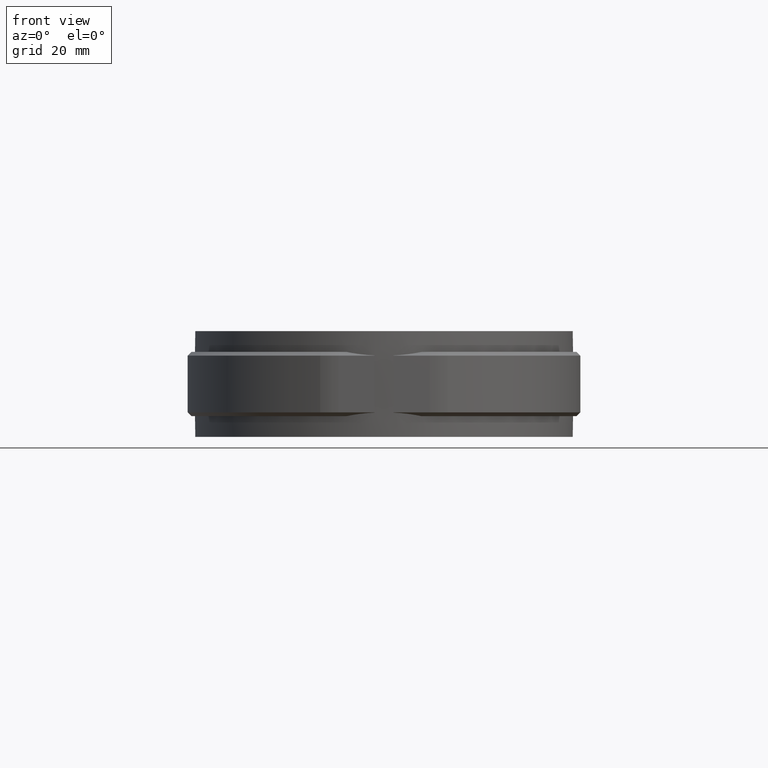
[diagram: clean part render]
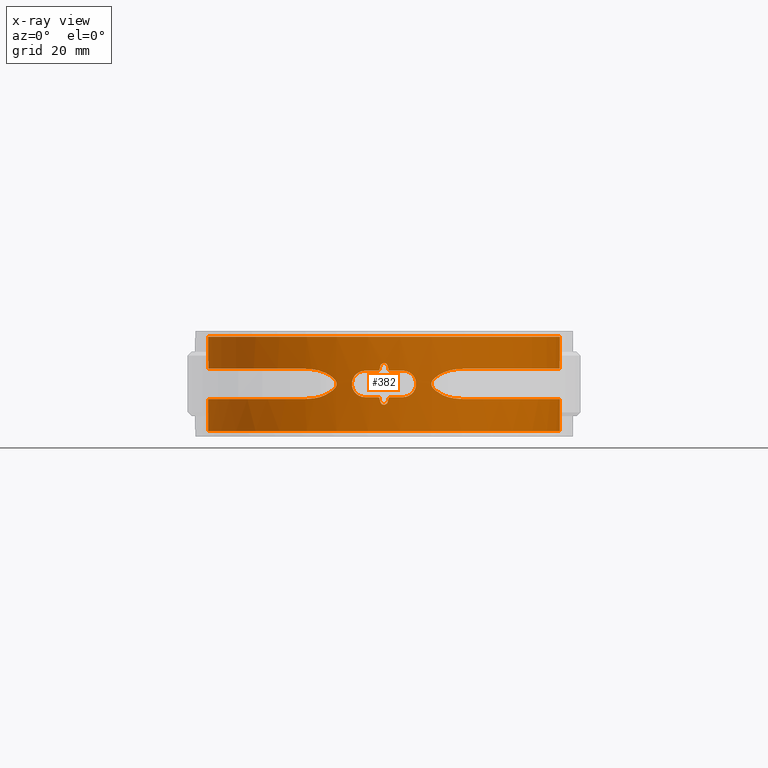
[diagram: x-ray — body ghosted, one internal face saturated and labeled with its STEP entity id]
A machine part, front view, then the same camera in x-ray: the body is ghosted and one INTERNAL B-rep face — a face not visible from any outside direction — is saturated and labeled: STEP entity #382.
In plain terms, the highlighted cylindrical surface (partial cylindrical patch) has radius 46.55 mm, axis along (0, 0, 1).
Its self-contained STEP definition (entity closure, byte-faithful):
#382 = ADVANCED_FACE( '', ( #735, #736 ), #737, .F. );
#735 = FACE_OUTER_BOUND( '', #1602, .T. );
#736 = FACE_BOUND( '', #1603, .T. );
#737 = CYLINDRICAL_SURFACE( '', #1604, 46.5500000000000 );
#1602 = EDGE_LOOP( '', ( #3155, #3156, #3157, #3158, #3159, #3160, #3161, #3162, #3163, #3164, #3165, #3166, #3167, #3168, #3169, #3170 ) );
#1603 = EDGE_LOOP( '', ( #3171, #3172, #3173, #3174, #3175, #3176, #3177, #3178, #3179, #3180, #3181, #3182, #3183, #3184, #3185, #3186 ) );
#1604 = AXIS2_PLACEMENT_3D( '', #3187, #3188, #3189 );
#3155 = ORIENTED_EDGE( '', *, *, #6279, .F. );
#3156 = ORIENTED_EDGE( '', *, *, #6275, .F. );
#3157 = ORIENTED_EDGE( '', *, *, #6284, .T. );
#3158 = ORIENTED_EDGE( '', *, *, #6285, .T. );
#3159 = ORIENTED_EDGE( '', *, *, #6286, .T. );
#3160 = ORIENTED_EDGE( '', *, *, #6287, .T. );
#3161 = ORIENTED_EDGE( '', *, *, #6288, .T. );
#3162 = ORIENTED_EDGE( '', *, *, #6289, .T. );
#3163 = ORIENTED_EDGE( '', *, *, #6290, .T. );
#3164 = ORIENTED_EDGE( '', *, *, #6291, .T. );
#3165 = ORIENTED_EDGE( '', *, *, #6207, .F. );
#3166 = ORIENTED_EDGE( '', *, *, #6277, .F. );
#3167 = ORIENTED_EDGE( '', *, *, #6280, .F. );
#3168 = ORIENTED_EDGE( '', *, *, #6252, .F. );
#3169 = ORIENTED_EDGE( '', *, *, #6292, .F. );
#3170 = ORIENTED_EDGE( '', *, *, #6250, .F. );
#3171 = ORIENTED_EDGE( '', *, *, #6293, .F. );
#3172 = ORIENTED_EDGE( '', *, *, #6256, .F. );
#3173 = ORIENTED_EDGE( '', *, *, #6294, .F. );
#3174 = ORIENTED_EDGE( '', *, *, #6295, .F. );
#3175 = ORIENTED_EDGE( '', *, *, #6266, .F. );
#3176 = ORIENTED_EDGE( '', *, *, #6296, .F. );
#3177 = ORIENTED_EDGE( '', *, *, #6297, .F. );
#3178 = ORIENTED_EDGE( '', *, *, #6298, .F. );
#3179 = ORIENTED_EDGE( '', *, *, #6299, .F. );
#3180 = ORIENTED_EDGE( '', *, *, #6264, .F. );
#3181 = ORIENTED_EDGE( '', *, *, #6259, .F. );
#3182 = ORIENTED_EDGE( '', *, *, #6262, .F. );
#3183 = ORIENTED_EDGE( '', *, *, #6300, .F. );
#3184 = ORIENTED_EDGE( '', *, *, #6301, .F. );
#3185 = ORIENTED_EDGE( '', *, *, #6302, .F. );
#3186 = ORIENTED_EDGE( '', *, *, #6303, .F. );
#3187 = CARTESIAN_POINT( '', ( 0.000000000000000, 0.000000000000000, -12.5000000000000 ) );
#3188 = DIRECTION( '', ( 0.000000000000000, 0.000000000000000, 1.00000000000000 ) );
#3189 = DIRECTION( '', ( -1.00000000000000, 6.16283340149655E-017, 0.000000000000000 ) );
#6207 = EDGE_CURVE( '', #7129, #7131, #7132, .T. );
#6250 = EDGE_CURVE( '', #7209, #7212, #7213, .T. );
#6252 = EDGE_CURVE( '', #7214, #7210, #7216, .T. );
#6256 = EDGE_CURVE( '', #7222, #7223, #7224, .T. );
#6259 = EDGE_CURVE( '', #7227, #7228, #7229, .F. );
#6262 = EDGE_CURVE( '', #7232, #7227, #7233, .T. );
#6264 = EDGE_CURVE( '', #7228, #7235, #7236, .T. );
#6266 = EDGE_CURVE( '', #7238, #7239, #7240, .T. );
#6275 = EDGE_CURVE( '', #7252, #7253, #7254, .T. );
#6277 = EDGE_CURVE( '', #7255, #7129, #7257, .T. );
#6279 = EDGE_CURVE( '', #7253, #7209, #7259, .T. );
#6280 = EDGE_CURVE( '', #7210, #7255, #7260, .T. );
#6284 = EDGE_CURVE( '', #7252, #7264, #7265, .T. );
#6285 = EDGE_CURVE( '', #7264, #7266, #7267, .T. );
#6286 = EDGE_CURVE( '', #7266, #7268, #7269, .T. );
#6287 = EDGE_CURVE( '', #7268, #7270, #7271, .T. );
#6288 = EDGE_CURVE( '', #7270, #7272, #7273, .T. );
#6289 = EDGE_CURVE( '', #7272, #7274, #7275, .T. );
#6290 = EDGE_CURVE( '', #7274, #7276, #7277, .T. );
#6291 = EDGE_CURVE( '', #7276, #7131, #7278, .T. );
#6292 = EDGE_CURVE( '', #7212, #7214, #7279, .T. );
#6293 = EDGE_CURVE( '', #7223, #7280, #7281, .T. );
#6294 = EDGE_CURVE( '', #7282, #7222, #7283, .F. );
#6295 = EDGE_CURVE( '', #7239, #7282, #7284, .T. );
#6296 = EDGE_CURVE( '', #7285, #7238, #7286, .T. );
#6297 = EDGE_CURVE( '', #7287, #7285, #7288, .F. );
#6298 = EDGE_CURVE( '', #7289, #7287, #7290, .T. );
#6299 = EDGE_CURVE( '', #7235, #7289, #7291, .T. );
#6300 = EDGE_CURVE( '', #7292, #7232, #7293, .T. );
#6301 = EDGE_CURVE( '', #7294, #7292, #7295, .T. );
#6302 = EDGE_CURVE( '', #7296, #7294, #7297, .F. );
#6303 = EDGE_CURVE( '', #7280, #7296, #7298, .T. );
#7129 = VERTEX_POINT( '', #8654 );
#7131 = VERTEX_POINT( '', #8656 );
#7132 = CIRCLE( '', #8657, 46.5500000000000 );
#7209 = VERTEX_POINT( '', #9162 );
#7210 = VERTEX_POINT( '', #9163 );
#7212 = VERTEX_POINT( '', #9178 );
#7213 = B_SPLINE_CURVE_WITH_KNOTS( '', 3, ( #9179, #9180, #9181, #9182, #9183, #9184, #9185, #9186, #9187, #9188 ), .UNSPECIFIED., .F., .F., ( 4, 2, 2, 2, 4 ), ( 9.85133562538035E-018, 0.00149618516867782, 0.00299237033735562, 0.00448855550603343, 0.00598474067471123 ), .UNSPECIFIED. );
#7214 = VERTEX_POINT( '', #9189 );
#7216 = B_SPLINE_CURVE_WITH_KNOTS( '', 3, ( #9200, #9201, #9202, #9203, #9204, #9205, #9206, #9207, #9208, #9209 ), .UNSPECIFIED., .F., .F., ( 4, 2, 2, 2, 4 ), ( 1.67709388211489E-015, 0.00149513585611032, 0.00299027171221895, 0.00448540756832759, 0.00598054342443623 ), .UNSPECIFIED. );
#7222 = VERTEX_POINT( '', #9231 );
#7223 = VERTEX_POINT( '', #9232 );
#7224 = ELLIPSE( '', #9233, 212.061327465736, 46.5500000000000 );
#7227 = VERTEX_POINT( '', #9238 );
#7228 = VERTEX_POINT( '', #9239 );
#7229 = B_SPLINE_CURVE_WITH_KNOTS( '', 3, ( #9240, #9241, #9242, #9243, #9244, #9245 ), .UNSPECIFIED., .F., .F., ( 4, 2, 4 ), ( 5.44594381272442E-011, 0.000335865168693846, 0.000671730282928255 ), .UNSPECIFIED. );
#7232 = VERTEX_POINT( '', #9250 );
#7233 = CIRCLE( '', #9251, 46.5500000000000 );
#7235 = VERTEX_POINT( '', #9254 );
#7236 = ELLIPSE( '', #9255, 212.061327465781, 46.5500000000000 );
#7238 = VERTEX_POINT( '', #9258 );
#7239 = VERTEX_POINT( '', #9259 );
#7240 = B_SPLINE_CURVE_WITH_KNOTS( '', 3, ( #9260, #9261, #9262, #9263, #9264, #9265, #9266, #9267, #9268, #9269, #9270, #9271, #9272, #9273, #9274, #9275, #9276, #9277, #9278, #9279, #9280, #9281, #9282, #9283, #9284, #9285, #9286, #9287, #9288, #9289, #9290, #9291, #9292, #9293 ), .UNSPECIFIED., .F., .F., ( 4, 2, 2, 2, 2, 2, 2, 2, 2, 2, 2, 2, 2, 2, 2, 2, 4 ), ( 1.78811203067275E-018, 0.000687134771177365, 0.00137426954235473, 0.00206140431353209, 0.00274853908470945, 0.00343567385588682, 0.00412280862706418, 0.00480994339824155, 0.00549707816941891, 0.00618421294059628, 0.00687134771177364, 0.00755848248295100, 0.00824561725412837, 0.00893275202530574, 0.00961988679648310, 0.0103070215676605, 0.0109941563388378 ), .UNSPECIFIED. );
#7252 = VERTEX_POINT( '', #9317 );
#7253 = VERTEX_POINT( '', #9318 );
#7254 = LINE( '', #9319, #9320 );
#7255 = VERTEX_POINT( '', #9321 );
#7257 = LINE( '', #9354, #9355 );
#7259 = B_SPLINE_CURVE_WITH_KNOTS( '', 3, ( #9357, #9358, #9359, #9360, #9361, #9362, #9363, #9364, #9365, #9366, #9367, #9368, #9369, #9370, #9371, #9372, #9373, #9374, #9375, #9376, #9377, #9378, #9379, #9380, #9381, #9382, #9383, #9384, #9385, #9386, #9387, #9388, #9389, #9390, #9391, #9392, #9393, #9394, #9395, #9396, #9397, #9398, #9399, #9400, #9401, #9402, #9403, #9404, #9405, #9406, #9407, #9408, #9409, #9410, #9411, #9412 ), .UNSPECIFIED., .F., .F., ( 4, 2, 2, 2, 2, 2, 2, 2, 2, 2, 2, 2, 2, 2, 2, 2, 2, 2, 2, 2, 2, 2, 2, 2, 2, 2, 2, 4 ), ( 1.62962475354841E-017, 0.00739229002055268, 0.00924036252569084, 0.0110884350308290, 0.0147845800411054, 0.0221768700616581, 0.0258730150719344, 0.0295691600822108, 0.0369614501027635, 0.0406575951130398, 0.0425056676181780, 0.0443537401233161, 0.0517460301438688, 0.0554421751541451, 0.0591383201644215, 0.0665306101849741, 0.0702267551952505, 0.0720748277003886, 0.0739229002055268, 0.0813151902260795, 0.0887074802466321, 0.0924036252569084, 0.0960997702671848, 0.103492060287737, 0.105340132792876, 0.107188205298014, 0.110884350308290, 0.118276640328843 ), .UNSPECIFIED. );
#7260 = B_SPLINE_CURVE_WITH_KNOTS( '', 3, ( #9413, #9414, #9415, #9416, #9417, #9418, #9419, #9420, #9421, #9422, #9423, #9424, #9425, #9426, #9427, #9428, #9429, #9430, #9431, #9432, #9433, #9434, #9435, #9436, #9437, #9438, #9439, #9440, #9441, #9442, #9443, #9444, #9445, #9446, #9447, #9448, #9449, #9450, #9451, #9452, #9453, #9454, #9455, #9456, #9457, #9458, #9459, #9460, #9461, #9462, #9463, #9464, #9465, #9466, #9467, #9468 ), .UNSPECIFIED., .F., .F., ( 4, 2, 2, 2, 2, 2, 2, 2, 2, 2, 2, 2, 2, 2, 2, 2, 2, 2, 2, 2, 2, 2, 2, 2, 2, 2, 2, 4 ), ( 6.93889390390723E-018, 0.00739224949701873, 0.00924031187127342, 0.0110883742455281, 0.0147844989940375, 0.0221767484910562, 0.0258728732395656, 0.0295689979880749, 0.0369612474850937, 0.0406573722336031, 0.0425054346078577, 0.0443534969821124, 0.0517457464791311, 0.0554418712276405, 0.0591379959761499, 0.0665302454731686, 0.0702263702216780, 0.0720744325959326, 0.0739224949701873, 0.0813147444672061, 0.0887069939642248, 0.0924031187127342, 0.0960992434612436, 0.103491492958262, 0.105339555332517, 0.107187617706772, 0.110883742455281, 0.118275991952300 ), .UNSPECIFIED. );
#7264 = VERTEX_POINT( '', #9497 );
#7265 = CIRCLE( '', #9498, 46.5500000000000 );
#7266 = VERTEX_POINT( '', #9499 );
#7267 = LINE( '', #9500, #9501 );
#7268 = VERTEX_POINT( '', #9502 );
#7269 = B_SPLINE_CURVE_WITH_KNOTS( '', 3, ( #9503, #9504, #9505, #9506, #9507, #9508, #9509, #9510, #9511, #9512, #9513, #9514, #9515, #9516, #9517, #9518, #9519, #9520, #9521, #9522, #9523, #9524, #9525, #9526, #9527, #9528, #9529, #9530, #9531, #9532, #9533, #9534, #9535, #9536, #9537, #9538, #9539, #9540, #9541, #9542, #9543, #9544, #9545, #9546, #9547, #9548, #9549, #9550, #9551, #9552, #9553, #9554, #9555, #9556, #9557, #9558 ), .UNSPECIFIED., .F., .F., ( 4, 2, 2, 2, 2, 2, 2, 2, 2, 2, 2, 2, 2, 2, 2, 2, 2, 2, 2, 2, 2, 2, 2, 2, 2, 2, 2, 4 ), ( 1.28793726409401E-016, 0.00739223670855284, 0.00924029588569103, 0.0110883550628292, 0.0147844734171056, 0.0221767101256583, 0.0258728284799347, 0.0295689468342111, 0.0369611835427638, 0.0406573018970402, 0.0425053610741783, 0.0443534202513165, 0.0517456569598692, 0.0554417753141456, 0.0591378936684219, 0.0665301303769746, 0.0702262487312510, 0.0720743079083891, 0.0739223670855273, 0.0813146037940800, 0.0887068405026327, 0.0924029588569091, 0.0960990772111854, 0.103491313919738, 0.105339373096876, 0.107187432274014, 0.110883550628291, 0.118275787336843 ), .UNSPECIFIED. );
#7270 = VERTEX_POINT( '', #9559 );
#7271 = B_SPLINE_CURVE_WITH_KNOTS( '', 3, ( #9560, #9561, #9562, #9563, #9564, #9565, #9566, #9567, #9568, #9569 ), .UNSPECIFIED., .F., .F., ( 4, 2, 2, 2, 4 ), ( 0.000000000000000, 0.00149654317440374, 0.00299308634880748, 0.00448962952321122, 0.00598617269761496 ), .UNSPECIFIED. );
#7272 = VERTEX_POINT( '', #9570 );
#7273 = B_SPLINE_CURVE_WITH_KNOTS( '', 3, ( #9571, #9572, #9573, #9574, #9575, #9576, #9577, #9578, #9579, #9580, #9581, #9582, #9583, #9584, #9585, #9586, #9587, #9588, #9589, #9590, #9591, #9592, #9593, #9594, #9595, #9596, #9597, #9598, #9599, #9600 ), .UNSPECIFIED., .F., .F., ( 4, 2, 2, 2, 2, 2, 2, 2, 2, 2, 2, 2, 2, 2, 4 ), ( 0.000000000000000, 0.00112050528646302, 0.00224101057292605, 0.00280126321615756, 0.00336151585938907, 0.00392176850262059, 0.00420189482423634, 0.00448202114585210, 0.00476214746746785, 0.00504227378908361, 0.00560252643231512, 0.00616277907554664, 0.00672303171877815, 0.00784353700524118, 0.00896404229170420 ), .UNSPECIFIED. );
#7274 = VERTEX_POINT( '', #9601 );
#7275 = B_SPLINE_CURVE_WITH_KNOTS( '', 3, ( #9602, #9603, #9604, #9605, #9606, #9607, #9608, #9609, #9610, #9611 ), .UNSPECIFIED., .F., .F., ( 4, 2, 2, 2, 4 ), ( 4.63840088528274E-016, 0.00149543172274202, 0.00299086344548358, 0.00448629516822514, 0.00598172689096670 ), .UNSPECIFIED. );
#7276 = VERTEX_POINT( '', #9612 );
#7277 = B_SPLINE_CURVE_WITH_KNOTS( '', 3, ( #9613, #9614, #9615, #9616, #9617, #9618, #9619, #9620, #9621, #9622, #9623, #9624, #9625, #9626, #9627, #9628, #9629, #9630, #9631, #9632, #9633, #9634, #9635, #9636, #9637, #9638, #9639, #9640, #9641, #9642, #9643, #9644, #9645, #9646, #9647, #9648, #9649, #9650, #9651, #9652, #9653, #9654, #9655, #9656, #9657, #9658, #9659, #9660, #9661, #9662, #9663, #9664, #9665, #9666, #9667, #9668 ), .UNSPECIFIED., .F., .F., ( 4, 2, 2, 2, 2, 2, 2, 2, 2, 2, 2, 2, 2, 2, 2, 2, 2, 2, 2, 2, 2, 2, 2, 2, 2, 2, 2, 4 ), ( 0.000000000000000, 0.00739223616834929, 0.00924029521043660, 0.0110883542525239, 0.0147844723366985, 0.0221767085050478, 0.0258728265892224, 0.0295689446733970, 0.0369611808417463, 0.0406572989259209, 0.0425053579680082, 0.0443534170100955, 0.0517456531784448, 0.0554417712626194, 0.0591378893467940, 0.0665301255151433, 0.0702262435993179, 0.0720743026414052, 0.0739223616834925, 0.0813145978518418, 0.0887068340201910, 0.0924029521043657, 0.0960990701885403, 0.103491306356890, 0.105339365398977, 0.107187424441064, 0.110883542525239, 0.118275778693588 ), .UNSPECIFIED. );
#7278 = LINE( '', #9669, #9670 );
#7279 = B_SPLINE_CURVE_WITH_KNOTS( '', 3, ( #9671, #9672, #9673, #9674, #9675, #9676, #9677, #9678, #9679, #9680, #9681, #9682, #9683, #9684, #9685, #9686, #9687, #9688, #9689, #9690, #9691, #9692, #9693, #9694, #9695, #9696, #9697, #9698, #9699, #9700 ), .UNSPECIFIED., .F., .F., ( 4, 2, 2, 2, 2, 2, 2, 2, 2, 2, 2, 2, 2, 2, 4 ), ( 0.000000000000000, 0.00112071008026361, 0.00224142016052721, 0.00280177520065902, 0.00336213024079083, 0.00392248528092263, 0.00420266280098854, 0.00448284032105444, 0.00476301784112034, 0.00504319536118624, 0.00560355040131805, 0.00616390544144985, 0.00672426048158166, 0.00784497056184526, 0.00896568064210887 ), .UNSPECIFIED. );
#7280 = VERTEX_POINT( '', #9701 );
#7281 = B_SPLINE_CURVE_WITH_KNOTS( '', 3, ( #9702, #9703, #9704, #9705, #9706, #9707, #9708, #9709, #9710, #9711 ), .UNSPECIFIED., .F., .F., ( 4, 2, 2, 2, 4 ), ( 1.08420217248550E-019, 0.000671567789988732, 0.00134313557997746, 0.00201470336996620, 0.00268627115995493 ), .UNSPECIFIED. );
#7282 = VERTEX_POINT( '', #9712 );
#7283 = B_SPLINE_CURVE_WITH_KNOTS( '', 3, ( #9713, #9714, #9715, #9716, #9717, #9718 ), .UNSPECIFIED., .F., .F., ( 4, 2, 4 ), ( 0.00156373170255371, 0.00189959651827456, 0.00223546133399541 ), .UNSPECIFIED. );
#7284 = CIRCLE( '', #9719, 46.5500000000000 );
#7285 = VERTEX_POINT( '', #9720 );
#7286 = CIRCLE( '', #9721, 46.5500000000000 );
#7287 = VERTEX_POINT( '', #9722 );
#7288 = B_SPLINE_CURVE_WITH_KNOTS( '', 3, ( #9723, #9724, #9725, #9726, #9727, #9728 ), .UNSPECIFIED., .F., .F., ( 4, 2, 4 ), ( 0.000671854842774671, 0.00100772544726368, 0.00134359605175268 ), .UNSPECIFIED. );
#7289 = VERTEX_POINT( '', #9729 );
#7290 = ELLIPSE( '', #9730, 212.061219288400, 46.5500000000000 );
#7291 = B_SPLINE_CURVE_WITH_KNOTS( '', 3, ( #9731, #9732, #9733, #9734, #9735, #9736, #9737, #9738, #9739, #9740 ), .UNSPECIFIED., .F., .F., ( 4, 2, 2, 2, 4 ), ( 0.000000000000000, 0.000671567789988737, 0.00134313557997747, 0.00201470336996621, 0.00268627115995495 ), .UNSPECIFIED. );
#7292 = VERTEX_POINT( '', #9741 );
#7293 = B_SPLINE_CURVE_WITH_KNOTS( '', 3, ( #9742, #9743, #9744, #9745, #9746, #9747, #9748, #9749, #9750, #9751, #9752, #9753, #9754, #9755, #9756, #9757, #9758, #9759, #9760, #9761, #9762, #9763, #9764, #9765, #9766, #9767, #9768, #9769, #9770, #9771, #9772, #9773, #9774, #9775 ), .UNSPECIFIED., .F., .F., ( 4, 2, 2, 2, 2, 2, 2, 2, 2, 2, 2, 2, 2, 2, 2, 2, 4 ), ( 2.63797774002510E-018, 0.000687134771177365, 0.00137426954235473, 0.00206140431353209, 0.00274853908470945, 0.00343567385588681, 0.00412280862706417, 0.00480994339824153, 0.00549707816941890, 0.00618421294059626, 0.00687134771177362, 0.00755848248295098, 0.00824561725412834, 0.00893275202530570, 0.00961988679648306, 0.0103070215676604, 0.0109941563388378 ), .UNSPECIFIED. );
#7294 = VERTEX_POINT( '', #9776 );
#7295 = CIRCLE( '', #9777, 46.5500000000000 );
#7296 = VERTEX_POINT( '', #9778 );
#7297 = B_SPLINE_CURVE_WITH_KNOTS( '', 3, ( #9779, #9780, #9781, #9782, #9783, #9784 ), .UNSPECIFIED., .F., .F., ( 4, 2, 4 ), ( 0.00223559610445870, 0.00257146605996794, 0.00290733601547718 ), .UNSPECIFIED. );
#7298 = ELLIPSE( '', #9785, 212.061219288384, 46.5500000000000 );
#8654 = CARTESIAN_POINT( '', ( 6.57618567103936, 46.0831453138782, 12.5000000000000 ) );
#8656 = CARTESIAN_POINT( '', ( -6.57618567103937, 46.0831453138782, 12.5000000000000 ) );
#8657 = AXIS2_PLACEMENT_3D( '', #12556, #12557, #12558 );
#9162 = CARTESIAN_POINT( '', ( 20.9280947548254, -41.5802740901942, -3.99747537238551 ) );
#9163 = CARTESIAN_POINT( '', ( 20.9286488434310, -41.5799738673640, 3.99749406839688 ) );
#9178 = CARTESIAN_POINT( '', ( 15.5511545031128, -43.8757247842183, -2.93832929959382 ) );
#9179 = CARTESIAN_POINT( '', ( 20.9280857954260, -41.5802564318606, -3.99749011188180 ) );
#9180 = CARTESIAN_POINT( '', ( 20.4817415313085, -41.8049094728791, -3.99532055369710 ) );
#9181 = CARTESIAN_POINT( '', ( 20.0328943868508, -42.0218159202100, -3.97614057692225 ) );
#9182 = CARTESIAN_POINT( '', ( 19.1304587837759, -42.4402570382058, -3.90070293195806 ) );
#9183 = CARTESIAN_POINT( '', ( 18.6759881019695, -42.6421469080496, -3.84433192815013 ) );
#9184 = CARTESIAN_POINT( '', ( 17.7692831279461, -43.0278723809518, -3.68557710978530 ) );
#9185 = CARTESIAN_POINT( '', ( 17.3152959536951, -43.2124288996296, -3.58305895392600 ) );
#9186 = CARTESIAN_POINT( '', ( 16.4193992536743, -43.5607255853025, -3.31517665051931 ) );
#9187 = CARTESIAN_POINT( '', ( 15.9786614068960, -43.7240291676956, -3.15060405984963 ) );
#9188 = CARTESIAN_POINT( '', ( 15.5510240322329, -43.8755985890670, -2.93850217358139 ) );
#9189 = CARTESIAN_POINT( '', ( 15.5512923696120, -43.8757787975003, 2.93825349545470 ) );
#9200 = CARTESIAN_POINT( '', ( 15.5510831780152, -43.8755776257191, 2.93853150886616 ) );
#9201 = CARTESIAN_POINT( '', ( 15.9786500209697, -43.7240325544344, 3.15059609555093 ) );
#9202 = CARTESIAN_POINT( '', ( 16.4197236273792, -43.5606109104388, 3.31532191274399 ) );
#9203 = CARTESIAN_POINT( '', ( 17.3168945626009, -43.2117959543216, 3.58348857965120 ) );
#9204 = CARTESIAN_POINT( '', ( 17.7702569674389, -43.0274754922325, 3.68579561925078 ) );
#9205 = CARTESIAN_POINT( '', ( 18.6777995905038, -42.6413588242736, 3.84460095374496 ) );
#9206 = CARTESIAN_POINT( '', ( 19.1317407056540, -42.4396752733668, 3.90083688747671 ) );
#9207 = CARTESIAN_POINT( '', ( 20.0335626715606, -42.0214933863833, 3.97616958776467 ) );
#9208 = CARTESIAN_POINT( '', ( 20.4822778301414, -41.8046471106016, 3.99533769512153 ) );
#9209 = CARTESIAN_POINT( '', ( 20.9286485138852, -41.5799732008362, 3.99749283793802 ) );
#9231 = CARTESIAN_POINT( '', ( 1.16219512100790, -46.5354897094755, -3.89024390662615 ) );
#9232 = CARTESIAN_POINT( '', ( 0.975609999999995, -46.5397753016482, -4.71951200000000 ) );
#9233 = AXIS2_PLACEMENT_3D( '', #12610, #12611, #12612 );
#9238 = CARTESIAN_POINT( '', ( -1.65000000000002, -46.5207480593337, 3.50000000000000 ) );
#9239 = CARTESIAN_POINT( '', ( -1.16219510888263, -46.5354897097784, 3.89024396052175 ) );
#9240 = CARTESIAN_POINT( '', ( -1.16219509675616, -46.5354897100812, 3.89024401441720 ) );
#9241 = CARTESIAN_POINT( '', ( -1.18712408803501, -46.5348671239301, 3.77944837886100 ) );
#9242 = CARTESIAN_POINT( '', ( -1.24903555896426, -46.5333243774729, 3.68044234708874 ) );
#9243 = CARTESIAN_POINT( '', ( -1.42635955286595, -46.5282265498333, 3.53861672449584 ) );
#9244 = CARTESIAN_POINT( '', ( -1.53651244032701, -46.5247732412423, 3.50000000000001 ) );
#9245 = CARTESIAN_POINT( '', ( -1.65000000000002, -46.5207480593337, 3.50000000000001 ) );
#9250 = CARTESIAN_POINT( '', ( -4.99999999999995, -46.2806925185871, 3.50000000000000 ) );
#9251 = AXIS2_PLACEMENT_3D( '', #12617, #12618, #12619 );
#9254 = CARTESIAN_POINT( '', ( -0.975610000000002, -46.5397753016482, 4.71951200000000 ) );
#9255 = AXIS2_PLACEMENT_3D( '', #12621, #12622, #12623 );
#9258 = CARTESIAN_POINT( '', ( 5.00000000000004, -46.2806925185871, 3.50000000000000 ) );
#9259 = CARTESIAN_POINT( '', ( 5.00000000000004, -46.2806925185871, -3.50000000000000 ) );
#9260 = CARTESIAN_POINT( '', ( 5.00000000000005, -46.2806925185871, 3.50000000000000 ) );
#9261 = CARTESIAN_POINT( '', ( 5.23101424725128, -46.2557345680164, 3.50000000000001 ) );
#9262 = CARTESIAN_POINT( '', ( 5.45798688627985, -46.2294648070248, 3.47735417320556 ) );
#9263 = CARTESIAN_POINT( '', ( 5.90423554468161, -46.1745930120415, 3.38882016543352 ) );
#9264 = CARTESIAN_POINT( '', ( 6.12575625310973, -46.1456732050923, 3.32189913692397 ) );
#9265 = CARTESIAN_POINT( '', ( 6.54860903964376, -46.0875662719305, 3.14708612205727 ) );
#9266 = CARTESIAN_POINT( '', ( 6.74913194916253, -46.0585339927889, 3.04014833053229 ) );
#9267 = CARTESIAN_POINT( '', ( 7.12869562067262, -46.0013155722735, 2.78758307530890 ) );
#9268 = CARTESIAN_POINT( '', ( 7.30868713323898, -45.9729526051980, 2.64044435126905 ) );
#9269 = CARTESIAN_POINT( '', ( 7.63173027795679, -45.9204308757646, 2.31861562045488 ) );
#9270 = CARTESIAN_POINT( '', ( 7.77679320521373, -45.8959793147898, 2.14295842760768 ) );
#9271 = CARTESIAN_POINT( '', ( 8.03324278500658, -45.8517877533408, 1.76133175017698 ) );
#9272 = CARTESIAN_POINT( '', ( 8.14289242043930, -45.8323441894986, 1.55705653946265 ) );
#9273 = CARTESIAN_POINT( '', ( 8.31863855610540, -45.8007720835402, 1.13526911675996 ) );
#9274 = CARTESIAN_POINT( '', ( 8.38623987158776, -45.7883787014959, 0.914916126865256 ) );
#9275 = CARTESIAN_POINT( '', ( 8.47729974651429, -45.7716072724474, 0.460519771584720 ) );
#9276 = CARTESIAN_POINT( '', ( 8.49980279502248, -45.7674103755657, 0.232266715548746 ) );
#9277 = CARTESIAN_POINT( '', ( 8.50019464909963, -45.7673375997242, -0.226284885958611 ) );
#9278 = CARTESIAN_POINT( '', ( 8.47736465282511, -45.7715947026079, -0.459162923809959 ) );
#9279 = CARTESIAN_POINT( '', ( 8.38737811139793, -45.7881696674285, -0.910255485971625 ) );
#9280 = CARTESIAN_POINT( '', ( 8.32081330275416, -45.8003775084188, -1.12917817948343 ) );
#9281 = CARTESIAN_POINT( '', ( 8.14459446912270, -45.8320422288435, -1.55382430716390 ) );
#9282 = CARTESIAN_POINT( '', ( 8.03450063987221, -45.8515640224239, -1.75894670944727 ) );
#9283 = CARTESIAN_POINT( '', ( 7.78038144641326, -45.8953678314364, -2.13812223048664 ) );
#9284 = CARTESIAN_POINT( '', ( 7.63547307573153, -45.9198155370585, -2.31464134562974 ) );
#9285 = CARTESIAN_POINT( '', ( 7.30865900001749, -45.9729639208651, -2.64071515189402 ) );
#9286 = CARTESIAN_POINT( '', ( 7.13210339171438, -46.0007847819863, -2.78493446076323 ) );
#9287 = CARTESIAN_POINT( '', ( 6.75376402296731, -46.0578524344199, -3.03743914761301 ) );
#9288 = CARTESIAN_POINT( '', ( 6.54961913161978, -46.0874221809350, -3.14658187784906 ) );
#9289 = CARTESIAN_POINT( '', ( 6.12700537486969, -46.1455068147413, -3.32146892987199 ) );
#9290 = CARTESIAN_POINT( '', ( 5.90948262079245, -46.1739247487791, -3.38746115223729 ) );
#9291 = CARTESIAN_POINT( '', ( 5.46202983718599, -46.2289902724368, -3.47686354707661 ) );
#9292 = CARTESIAN_POINT( '', ( 5.23101208102020, -46.2557348020482, -3.50000000000002 ) );
#9293 = CARTESIAN_POINT( '', ( 5.00000000000005, -46.2806925185871, -3.50000000000002 ) );
#9317 = CARTESIAN_POINT( '', ( 6.57618567103936, 46.0831453138782, -12.5000000000000 ) );
#9318 = CARTESIAN_POINT( '', ( 6.57618567103936, 46.0831453138782, -3.99547789453363 ) );
#9319 = CARTESIAN_POINT( '', ( 6.57618567103937, 46.0831453138782, -12.5000000000000 ) );
#9320 = VECTOR( '', #12636, 1000.00000000000 );
#9321 = CARTESIAN_POINT( '', ( 6.57618567103937, 46.0831453138782, 3.99547789453562 ) );
#9354 = CARTESIAN_POINT( '', ( 6.57618567103937, 46.0831453138782, -12.5000000000000 ) );
#9355 = VECTOR( '', #12637, 1000.00000000000 );
#9357 = CARTESIAN_POINT( '', ( 6.57618567103935, 46.0831453138782, -3.99547789453362 ) );
#9358 = CARTESIAN_POINT( '', ( 9.03003772982835, 45.7329741908364, -3.99397553030258 ) );
#9359 = CARTESIAN_POINT( '', ( 11.4348552944387, 45.1910810015259, -3.99297813569633 ) );
#9360 = CARTESIAN_POINT( '', ( 14.3804321190164, 44.2773771036188, -3.99377437020493 ) );
#9361 = CARTESIAN_POINT( '', ( 14.9665071864898, 44.0827489206268, -3.99401512142182 ) );
#9362 = CARTESIAN_POINT( '', ( 16.1325253790865, 43.6695169959023, -3.99461225541899 ) );
#9363 = CARTESIAN_POINT( '', ( 16.7131203908933, 43.4506098292082, -3.99496915358545 ) );
#9364 = CARTESIAN_POINT( '', ( 18.4333344591096, 42.7626031906491, -3.99608313252576 ) );
#9365 = CARTESIAN_POINT( '', ( 19.5551601144487, 42.2610678286828, -3.99689804704563 ) );
#9366 = CARTESIAN_POINT( '', ( 22.8475872730146, 40.6311311716889, -3.99805810983151 ) );
#9367 = CARTESIAN_POINT( '', ( 24.9455822609811, 39.3781599085738, -3.99627575868454 ) );
#9368 = CARTESIAN_POINT( '', ( 27.9463944793408, 37.2479032783890, -3.99467990439836 ) );
#9369 = CARTESIAN_POINT( '', ( 28.9223063545644, 36.4957327832769, -3.99431761784417 ) );
#9370 = CARTESIAN_POINT( '', ( 30.8231813295261, 34.9051544758476, -3.99422989105408 ) );
#9371 = CARTESIAN_POINT( '', ( 31.7354752150041, 34.0773632391112, -3.99450521891057 ) );
#9372 = CARTESIAN_POINT( '', ( 34.3614003778450, 31.4994437075213, -3.99594819924263 ) );
#9373 = CARTESIAN_POINT( '', ( 35.9647412744847, 29.6553371972234, -3.99787428891738 ) );
#9374 = CARTESIAN_POINT( '', ( 38.1498926211951, 26.7018347271624, -3.99718864430893 ) );
#9375 = CARTESIAN_POINT( '', ( 38.8414655938469, 25.6859674239221, -3.99649006620694 ) );
#9376 = CARTESIAN_POINT( '', ( 39.8221618497268, 24.1138838350308, -3.99547306455459 ) );
#9377 = CARTESIAN_POINT( '', ( 40.1401327133954, 23.5807950199580, -3.99513576514217 ) );
#9378 = CARTESIAN_POINT( '', ( 40.7517787797670, 22.5072582583309, -3.99455394691284 ) );
#9379 = CARTESIAN_POINT( '', ( 41.0460041716588, 21.9660136787262, -3.99430882958681 ) );
#9380 = CARTESIAN_POINT( '', ( 42.4600369138211, 19.2377548476412, -3.99343648238509 ) );
#9381 = CARTESIAN_POINT( '', ( 43.4096231286179, 16.9850425419156, -3.99416582132228 ) );
#9382 = CARTESIAN_POINT( '', ( 44.5655157511070, 13.5023495517508, -3.99614160469459 ) );
#9383 = CARTESIAN_POINT( '', ( 44.9058577725539, 12.3241009469837, -3.99688866503299 ) );
#9384 = CARTESIAN_POINT( '', ( 45.4947412059521, 9.93217242317759, -3.99763966366277 ) );
#9385 = CARTESIAN_POINT( '', ( 45.7437335646482, 8.71389008118777, -3.99744462322025 ) );
#9386 = CARTESIAN_POINT( '', ( 46.3391793232225, 5.06528605040196, -3.99581688637047 ) );
#9387 = CARTESIAN_POINT( '', ( 46.5400643857135, 2.62680786864512, -3.99405712475784 ) );
#9388 = CARTESIAN_POINT( '', ( 46.5544317616529, -1.03980118334001, -3.99375636268582 ) );
#9389 = CARTESIAN_POINT( '', ( 46.5111675213466, -2.26349318127091, -3.99398644598587 ) );
#9390 = CARTESIAN_POINT( '', ( 46.3730443069867, -4.10130017157381, -3.99470866524851 ) );
#9391 = CARTESIAN_POINT( '', ( 46.3147845077828, -4.71428110848023, -3.99500850260834 ) );
#9392 = CARTESIAN_POINT( '', ( 46.1734565586095, -5.94101168171982, -3.99566023693133 ) );
#9393 = CARTESIAN_POINT( '', ( 46.0901581315642, -6.55604579128114, -3.99601282130691 ) );
#9394 = CARTESIAN_POINT( '', ( 45.6144397950432, -9.60916179195137, -3.99764683583740 ) );
#9395 = CARTESIAN_POINT( '', ( 45.0451610632866, -11.9919571216059, -3.99744696858117 ) );
#9396 = CARTESIAN_POINT( '', ( 43.5420498148035, -16.6422194658356, -3.99501895735093 ) );
#9397 = CARTESIAN_POINT( '', ( 42.6082312522729, -18.9096910148193, -3.99394088849164 ) );
#9398 = CARTESIAN_POINT( '', ( 40.9227521450282, -22.2208163229294, -3.99452105148548 ) );
#9399 = CARTESIAN_POINT( '', ( 40.3192000624928, -23.2974339405571, -3.99502077788716 ) );
#9400 = CARTESIAN_POINT( '', ( 39.0357526673128, -25.3893350757817, -3.99621212338343 ) );
#9401 = CARTESIAN_POINT( '', ( 38.3551097202696, -26.4060804629691, -3.99690279579267 ) );
#9402 = CARTESIAN_POINT( '', ( 36.1979081047124, -29.3698154084411, -3.99798773209493 ) );
#9403 = CARTESIAN_POINT( '', ( 34.6068123247224, -31.2308557898668, -3.99620651992908 ) );
#9404 = CARTESIAN_POINT( '', ( 32.4207933214803, -33.4092145589542, -3.99454787434721 ) );
#9405 = CARTESIAN_POINT( '', ( 31.9727036855616, -33.8383090503504, -3.99425371960120 ) );
#9406 = CARTESIAN_POINT( '', ( 31.0624933599767, -34.6757328201316, -3.99380967001787 ) );
#9407 = CARTESIAN_POINT( '', ( 30.6002463494944, -35.0842766940730, -3.99365939741675 ) );
#9408 = CARTESIAN_POINT( '', ( 29.1923642462897, -36.2798092731482, -3.99346538635805 ) );
#9409 = CARTESIAN_POINT( '', ( 28.2256209814127, -37.0367457687776, -3.99369441448946 ) );
#9410 = CARTESIAN_POINT( '', ( 25.2419658117958, -39.1887806606158, -3.99519946371294 ) );
#9411 = CARTESIAN_POINT( '', ( 23.1421663912669, -40.4658701148500, -3.99755505601985 ) );
#9412 = CARTESIAN_POINT( '', ( 20.9280858522601, -41.5802564032550, -3.99748926461679 ) );
#9413 = CARTESIAN_POINT( '', ( 20.9286485092576, -41.5799732031648, 3.99748928127863 ) );
#9414 = CARTESIAN_POINT( '', ( 23.1427021639720, -40.4655628957376, 3.99755460171490 ) );
#9415 = CARTESIAN_POINT( '', ( 25.2491420301940, -39.1850797612592, 3.99518997024292 ) );
#9416 = CARTESIAN_POINT( '', ( 27.7495371198888, -37.3797557035120, 3.99393606837583 ) );
#9417 = CARTESIAN_POINT( '', ( 28.2429438022478, -37.0083937891882, 3.99375035515541 ) );
#9418 = CARTESIAN_POINT( '', ( 29.2162998249057, -36.2449018485879, 3.99354746444525 ) );
#9419 = CARTESIAN_POINT( '', ( 29.6967703570879, -35.8522762740681, 3.99353067871162 ) );
#9420 = CARTESIAN_POINT( '', ( 31.1077608638874, -34.6516269276070, 3.99373827330743 ) );
#9421 = CARTESIAN_POINT( '', ( 32.0110728908444, -33.8185354045004, 3.99423437378902 ) );
#9422 = CARTESIAN_POINT( '', ( 34.6118065848466, -31.2237704809458, 3.99621565033623 ) );
#9423 = CARTESIAN_POINT( '', ( 36.2006885972105, -29.3671862076848, 3.99799164478475 ) );
#9424 = CARTESIAN_POINT( '', ( 38.3654868057409, -26.3912233010481, 3.99689489949851 ) );
#9425 = CARTESIAN_POINT( '', ( 39.0505775976112, -25.3671183194894, 3.99619745657711 ) );
#9426 = CARTESIAN_POINT( '', ( 40.3449752523017, -23.2534142532487, 3.99499778656041 ) );
#9427 = CARTESIAN_POINT( '', ( 40.9456574816712, -22.1779212544313, 3.99450790541991 ) );
#9428 = CARTESIAN_POINT( '', ( 42.6123914588212, -18.8972173945419, 3.99395021995155 ) );
#9429 = CARTESIAN_POINT( '', ( 43.5439428129550, -16.6381072249469, 3.99502165547745 ) );
#9430 = CARTESIAN_POINT( '', ( 44.6731487372306, -13.1419956183584, 3.99684622922863 ) );
#9431 = CARTESIAN_POINT( '', ( 45.0046596343490, -11.9586355090186, 3.99743379204984 ) );
#9432 = CARTESIAN_POINT( '', ( 45.4328249264067, -10.1559038109253, 3.99751396011716 ) );
#9433 = CARTESIAN_POINT( '', ( 45.5641957357211, -9.54925188967990, 3.99738428778242 ) );
#9434 = CARTESIAN_POINT( '', ( 45.8015638929812, -8.33671935792645, 3.99694642229572 ) );
#9435 = CARTESIAN_POINT( '', ( 45.9078284974137, -7.72990909136234, 3.99664217139720 ) );
#9436 = CARTESIAN_POINT( '', ( 46.3780115483709, -4.69317966393214, 3.99501119941097 ) );
#9437 = CARTESIAN_POINT( '', ( 46.5596468323130, -2.25527598578941, 3.99365374468580 ) );
#9438 = CARTESIAN_POINT( '', ( 46.5445886642898, 1.41417354044989, 3.99395912128888 ) );
#9439 = CARTESIAN_POINT( '', ( 46.4914282992601, 2.63943212320601, 3.99439222773469 ) );
#9440 = CARTESIAN_POINT( '', ( 46.2868023250988, 5.09425536810696, 3.99560500819558 ) );
#9441 = CARTESIAN_POINT( '', ( 46.1342963550435, 6.32832741857555, 3.99638668091584 ) );
#9442 = CARTESIAN_POINT( '', ( 45.5351496485593, 9.97630988141456, 3.99799481441611 ) );
#9443 = CARTESIAN_POINT( '', ( 44.9479412153930, 12.3515271900108, 3.99679393603144 ) );
#9444 = CARTESIAN_POINT( '', ( 43.7923187218789, 15.8312699054238, 3.99482064870946 ) );
#9445 = CARTESIAN_POINT( '', ( 43.3610925133431, 16.9772713251168, 3.99424892724543 ) );
#9446 = CARTESIAN_POINT( '', ( 42.6441270448940, 18.6750722884351, 3.99386108811359 ) );
#9447 = CARTESIAN_POINT( '', ( 42.3934372143872, 19.2374682883576, 3.99380656843466 ) );
#9448 = CARTESIAN_POINT( '', ( 41.8682997108418, 20.3550776053269, 3.99385988897171 ) );
#9449 = CARTESIAN_POINT( '', ( 41.5932239334735, 20.9114354589042, 3.99396833580162 ) );
#9450 = CARTESIAN_POINT( '', ( 40.1687407579654, 23.6534422025884, 3.99486218312340 ) );
#9451 = CARTESIAN_POINT( '', ( 38.8693410937775, 25.7302901201773, 3.99696829598955 ) );
#9452 = CARTESIAN_POINT( '', ( 35.9618031423000, 29.6584258093273, 3.99786979254765 ) );
#9453 = CARTESIAN_POINT( '', ( 34.3536766350620, 31.5097222414680, 3.99593570761246 ) );
#9454 = CARTESIAN_POINT( '', ( 31.7003342459304, 34.1104838314631, 3.99449012362510 ) );
#9455 = CARTESIAN_POINT( '', ( 30.7849723711708, 34.9384284856589, 3.99422564841804 ) );
#9456 = CARTESIAN_POINT( '', ( 28.9014573715319, 36.5118346668964, 3.99432477746027 ) );
#9457 = CARTESIAN_POINT( '', ( 27.9321264165711, 37.2584463564577, 3.99468653680939 ) );
#9458 = CARTESIAN_POINT( '', ( 24.9424654776440, 39.3795373270171, 3.99627934239410 ) );
#9459 = CARTESIAN_POINT( '', ( 22.8409886191059, 40.6360303141968, 3.99806895599919 ) );
#9460 = CARTESIAN_POINT( '', ( 20.0744673598084, 42.0035618908640, 3.99707763521026 ) );
#9461 = CARTESIAN_POINT( '', ( 19.5129430482382, 42.2673631951711, 3.99676718409429 ) );
#9462 = CARTESIAN_POINT( '', ( 18.3832129497761, 42.7708127058568, 3.99606900539464 ) );
#9463 = CARTESIAN_POINT( '', ( 17.8148214333821, 43.0106229027098, 3.99568170872627 ) );
#9464 = CARTESIAN_POINT( '', ( 16.0992079354368, 43.6947844093679, 3.99457347160051 ) );
#9465 = CARTESIAN_POINT( '', ( 14.9415632470522, 44.1039215158084, 3.99392223568485 ) );
#9466 = CARTESIAN_POINT( '', ( 11.4274357486694, 45.1921567704291, 3.99298386797391 ) );
#9467 = CARTESIAN_POINT( '', ( 9.03002501774806, 45.7329760048836, 3.99397553808751 ) );
#9468 = CARTESIAN_POINT( '', ( 6.57618567103936, 46.0831453138782, 3.99547789453563 ) );
#9497 = CARTESIAN_POINT( '', ( -6.57618567103937, 46.0831453138782, -12.5000000000000 ) );
#9498 = AXIS2_PLACEMENT_3D( '', #12641, #12642, #12643 );
#9499 = CARTESIAN_POINT( '', ( -6.57618567103926, 46.0831453138782, -3.99547789453364 ) );
#9500 = CARTESIAN_POINT( '', ( -6.57618567103938, 46.0831453138782, -12.5000000000000 ) );
#9501 = VECTOR( '', #12644, 1000.00000000000 );
#9502 = CARTESIAN_POINT( '', ( -20.9288332613289, -41.5798732256810, -3.99749661566699 ) );
#9503 = CARTESIAN_POINT( '', ( -6.57618567103914, 46.0831453138783, -3.99547789453363 ) );
#9504 = CARTESIAN_POINT( '', ( -9.03002003304399, 45.7329767162140, -3.99397554113739 ) );
#9505 = CARTESIAN_POINT( '', ( -11.4348206036772, 45.1910888002170, -3.99297814499721 ) );
#9506 = CARTESIAN_POINT( '', ( -14.3803770626263, 44.2773949223631, -3.99377435065302 ) );
#9507 = CARTESIAN_POINT( '', ( -14.9664481013345, 44.0827689168288, -3.99401509534582 ) );
#9508 = CARTESIAN_POINT( '', ( -16.1324583271985, 43.6695417020338, -3.99461221689894 ) );
#9509 = CARTESIAN_POINT( '', ( -16.7130495492959, 43.4506370170474, -3.99496910923487 ) );
#9510 = CARTESIAN_POINT( '', ( -18.4332528358973, 42.7626381270567, -3.99608307661809 ) );
#9511 = CARTESIAN_POINT( '', ( -19.5550716442077, 42.2611085153618, -3.99689799063915 ) );
#9512 = CARTESIAN_POINT( '', ( -22.8474792798881, 40.6311908560922, -3.99805812224684 ) );
#9513 = CARTESIAN_POINT( '', ( -24.9454625969837, 39.3782345646715, -3.99627584613871 ) );
#9514 = CARTESIAN_POINT( '', ( -27.9462595387815, 37.2480042175820, -3.99467996425395 ) );
#9515 = CARTESIAN_POINT( '', ( -28.9221654084869, 36.4958442057764, -3.99431765440984 ) );
#9516 = CARTESIAN_POINT( '', ( -30.8230343901589, 34.9052839437135, -3.99422986777910 ) );
#9517 = CARTESIAN_POINT( '', ( -31.7353257502246, 34.0775021311964, -3.99450516063477 ) );
#9518 = CARTESIAN_POINT( '', ( -34.3612448003527, 31.4996121193340, -3.99594806604285 ) );
#9519 = CARTESIAN_POINT( '', ( -35.9645835537646, 29.6555269350433, -3.99787419473371 ) );
#9520 = CARTESIAN_POINT( '', ( -38.1497350963209, 26.7020593602486, -3.99718876556076 ) );
#9521 = CARTESIAN_POINT( '', ( -38.8413087071244, 25.6862041769022, -3.99649022329926 ) );
#9522 = CARTESIAN_POINT( '', ( -39.8220068954648, 24.1141395988424, -3.99547322804543 ) );
#9523 = CARTESIAN_POINT( '', ( -40.1399788862150, 23.5810567679058, -3.99513592255718 ) );
#9524 = CARTESIAN_POINT( '', ( -40.7516282396494, 22.5075307196145, -3.99455407902768 ) );
#9525 = CARTESIAN_POINT( '', ( -41.0458554077127, 21.9662915478704, -3.99430894292687 ) );
#9526 = CARTESIAN_POINT( '', ( -42.4598977246411, 19.2380600239049, -3.99343648202433 ) );
#9527 = CARTESIAN_POINT( '', ( -43.4094937938721, 16.9853704108968, -3.99416565895745 ) );
#9528 = CARTESIAN_POINT( '', ( -44.5654053580909, 13.5027130654524, -3.99614138665051 ) );
#9529 = CARTESIAN_POINT( '', ( -44.9057543916259, 12.3244766117313, -3.99688846106772 ) );
#9530 = CARTESIAN_POINT( '', ( -45.4946534717086, 9.93257301625770, -3.99763962387695 ) );
#9531 = CARTESIAN_POINT( '', ( -45.7436549015953, 8.71430196761105, -3.99744474956493 ) );
#9532 = CARTESIAN_POINT( '', ( -46.3391305190087, 5.06572530819459, -3.99581719712201 ) );
#9533 = CARTESIAN_POINT( '', ( -46.5400375958763, 2.62726543937240, -3.99405732345971 ) );
#9534 = CARTESIAN_POINT( '', ( -46.5544423553116, -1.03931600804802, -3.99375632192271 ) );
#9535 = CARTESIAN_POINT( '', ( -46.5111913074161, -2.26299878179847, -3.99398631488462 ) );
#9536 = CARTESIAN_POINT( '', ( -46.3730891887908, -4.10079189533267, -3.99470843393254 ) );
#9537 = CARTESIAN_POINT( '', ( -46.3148366398895, -4.71376819988321, -3.99500824389772 ) );
#9538 = CARTESIAN_POINT( '', ( -46.1735236710272, -5.94048949354939, -3.99565994572995 ) );
#9539 = CARTESIAN_POINT( '', ( -46.0902329334352, -6.55551958168105, -3.99601252548783 ) );
#9540 = CARTESIAN_POINT( '', ( -45.6145522691866, -9.60862439621132, -3.99764660497066 ) );
#9541 = CARTESIAN_POINT( '', ( -45.0453053967411, -11.9914113216006, -3.99744722252184 ) );
#9542 = CARTESIAN_POINT( '', ( -43.5422632008638, -16.6416585446336, -3.99501928124802 ) );
#9543 = CARTESIAN_POINT( '', ( -42.6084818031013, -18.9091233676817, -3.99394099077238 ) );
#9544 = CARTESIAN_POINT( '', ( -40.9230644576718, -22.2202404896549, -3.99452084975853 ) );
#9545 = CARTESIAN_POINT( '', ( -40.3195284751856, -23.2968651912248, -3.99502048801824 ) );
#9546 = CARTESIAN_POINT( '', ( -39.0361184481440, -25.3887723354611, -3.99621176888319 ) );
#9547 = CARTESIAN_POINT( '', ( -38.3554945901711, -26.4055210310692, -3.99690246511401 ) );
#9548 = CARTESIAN_POINT( '', ( -36.1983518290843, -29.3692670928917, -3.99798778304067 ) );
#9549 = CARTESIAN_POINT( '', ( -34.6072973671023, -31.2303164473315, -3.99620703075792 ) );
#9550 = CARTESIAN_POINT( '', ( -32.4213341938675, -33.4086895712482, -3.99454824906155 ) );
#9551 = CARTESIAN_POINT( '', ( -31.9732558003442, -33.8377873112376, -3.99425404968324 ) );
#9552 = CARTESIAN_POINT( '', ( -31.0630636646618, -34.6752218790300, -3.99380988758732 ) );
#9553 = CARTESIAN_POINT( '', ( -30.6008257206036, -35.0837713063880, -3.99365954850006 ) );
#9554 = CARTESIAN_POINT( '', ( -29.1929707498588, -36.2793210278894, -3.99346532758230 ) );
#9555 = CARTESIAN_POINT( '', ( -28.2262454840221, -37.0362695935456, -3.99369420167754 ) );
#9556 = CARTESIAN_POINT( '', ( -25.2426441959856, -39.1883428089930, -3.99519891720013 ) );
#9557 = CARTESIAN_POINT( '', ( -23.1428805311524, -40.4654605995545, -3.99755445025843 ) );
#9558 = CARTESIAN_POINT( '', ( -20.9288360665733, -41.5798787985066, -3.99748928680321 ) );
#9559 = CARTESIAN_POINT( '', ( -15.5504781356811, -43.8757348887868, -2.93831372385337 ) );
#9560 = CARTESIAN_POINT( '', ( -20.9288360774443, -41.5798787930348, -3.99749374250175 ) );
#9561 = CARTESIAN_POINT( '', ( -20.4823890668100, -41.8045936448827, -3.99534307975500 ) );
#9562 = CARTESIAN_POINT( '', ( -20.0334371965688, -42.0215585657912, -3.97617394019064 ) );
#9563 = CARTESIAN_POINT( '', ( -19.1307880390302, -42.4401100282833, -3.90074245595134 ) );
#9564 = CARTESIAN_POINT( '', ( -18.6762085467192, -42.6420517177541, -3.84436663507120 ) );
#9565 = CARTESIAN_POINT( '', ( -17.7692882006813, -43.0278716324813, -3.68558188771464 ) );
#9566 = CARTESIAN_POINT( '', ( -17.3151909442252, -43.2124722080296, -3.58303804638893 ) );
#9567 = CARTESIAN_POINT( '', ( -16.4190862584395, -43.5608447829313, -3.31507256546679 ) );
#9568 = CARTESIAN_POINT( '', ( -15.9782557032234, -43.7241784613606, -3.15042247407077 ) );
#9569 = CARTESIAN_POINT( '', ( -15.5505226800159, -43.8757762823445, -2.93825349869588 ) );
#9570 = CARTESIAN_POINT( '', ( -15.5502123697707, -43.8758405117103, 2.93816666858285 ) );
#9571 = CARTESIAN_POINT( '', ( -15.5505225442822, -43.8757763304511, -2.93825323302696 ) );
#9572 = CARTESIAN_POINT( '', ( -15.2294183795220, -43.9895825800672, -2.78048606524966 ) );
#9573 = CARTESIAN_POINT( '', ( -14.9135143322046, -44.0975610369623, -2.61126140215523 ) );
#9574 = CARTESIAN_POINT( '', ( -14.2972899763264, -44.3011884544684, -2.24120109894371 ) );
#9575 = CARTESIAN_POINT( '', ( -13.9966317400444, -44.3969212729919, -2.04095356007137 ) );
#9576 = CARTESIAN_POINT( '', ( -13.5670259415860, -44.5293247394006, -1.70024626314589 ) );
#9577 = CARTESIAN_POINT( '', ( -13.4277970828717, -44.5714641941749, -1.57993460828792 ) );
#9578 = CARTESIAN_POINT( '', ( -13.1660126663870, -44.6494934504293, -1.32421981801619 ) );
#9579 = CARTESIAN_POINT( '', ( -13.0427445368207, -44.6855974127127, -1.18854874289530 ) );
#9580 = CARTESIAN_POINT( '', ( -12.8211626242695, -44.7496769837039, -0.892012815123180 ) );
#9581 = CARTESIAN_POINT( '', ( -12.7225441494105, -44.7777267804346, -0.729958531372771 ) );
#9582 = CARTESIAN_POINT( '', ( -12.6160226484776, -44.8078099648636, -0.469357388184661 ) );
#9583 = CARTESIAN_POINT( '', ( -12.5870633629831, -44.8159430226694, -0.378145563131853 ) );
#9584 = CARTESIAN_POINT( '', ( -12.5479224047597, -44.8269177664384, -0.194335726319191 ) );
#9585 = CARTESIAN_POINT( '', ( -12.5374177815325, -44.8298522822735, -0.101351067559069 ) );
#9586 = CARTESIAN_POINT( '', ( -12.5364001303782, -44.8301368729809, 0.0869978492417583 ) );
#9587 = CARTESIAN_POINT( '', ( -12.5462750628174, -44.8273785413305, 0.182835115426580 ) );
#9588 = CARTESIAN_POINT( '', ( -12.5840533470992, -44.8167879950915, 0.367345765381108 ) );
#9589 = CARTESIAN_POINT( '', ( -12.6118176961953, -44.8089934768887, 0.457267228734761 ) );
#9590 = CARTESIAN_POINT( '', ( -12.7175843567453, -44.7791348306857, 0.721111826304561 ) );
#9591 = CARTESIAN_POINT( '', ( -12.8135872686438, -44.7518461044640, 0.880393228334683 ) );
#9592 = CARTESIAN_POINT( '', ( -13.0347406301156, -44.6879322094275, 1.17921875999553 ) );
#9593 = CARTESIAN_POINT( '', ( -13.1597648438175, -44.6513353050536, 1.31759822896189 ) );
#9594 = CARTESIAN_POINT( '', ( -13.4215626825687, -44.5733419257158, 1.57433927858199 ) );
#9595 = CARTESIAN_POINT( '', ( -13.5594962501287, -44.5316161836077, 1.69388691895103 ) );
#9596 = CARTESIAN_POINT( '', ( -13.9874374798269, -44.3998108855608, 2.03440541631103 ) );
#9597 = CARTESIAN_POINT( '', ( -14.2915818428312, -44.3030427350315, 2.23758562064307 ) );
#9598 = CARTESIAN_POINT( '', ( -14.9110587161159, -44.0984039973888, 2.60997186117735 ) );
#9599 = CARTESIAN_POINT( '', ( -15.2282185475229, -43.9900055564495, 2.77988832558111 ) );
#9600 = CARTESIAN_POINT( '', ( -15.5502478945733, -43.8758736712709, 2.93811828668489 ) );
#9601 = CARTESIAN_POINT( '', ( -20.9288332718350, -41.5798732372210, 3.99749749372790 ) );
#9602 = CARTESIAN_POINT( '', ( -15.5502484559896, -43.8758734722969, 2.93811747154721 ) );
#9603 = CARTESIAN_POINT( '', ( -15.9778887369630, -43.7243115296469, 3.15025119033874 ) );
#9604 = CARTESIAN_POINT( '', ( -16.4190280819076, -43.5608740614930, 3.31508330296051 ) );
#9605 = CARTESIAN_POINT( '', ( -17.3163690285806, -43.2120075421374, 3.58336216392033 ) );
#9606 = CARTESIAN_POINT( '', ( -17.7698195160321, -43.0276572673832, 3.68570709964412 ) );
#9607 = CARTESIAN_POINT( '', ( -18.6775436885361, -42.6414720350338, 3.84456813854255 ) );
#9608 = CARTESIAN_POINT( '', ( -19.1315740836850, -42.4397515294748, 3.90082083198921 ) );
#9609 = CARTESIAN_POINT( '', ( -20.0335739715532, -42.0214891541149, 3.97617266823478 ) );
#9610 = CARTESIAN_POINT( '', ( -20.4823775778329, -41.8045994278458, 3.99534302459541 ) );
#9611 = CARTESIAN_POINT( '', ( -20.9288360845670, -41.5798787894497, 3.99749374253805 ) );
#9612 = CARTESIAN_POINT( '', ( -6.57618567103939, 46.0831453138782, 3.99547789453563 ) );
#9613 = CARTESIAN_POINT( '', ( -20.9288360703419, -41.5798787966097, 3.99748928680532 ) );
#9614 = CARTESIAN_POINT( '', ( -23.1428807059718, -40.4654605113093, 3.99755445026244 ) );
#9615 = CARTESIAN_POINT( '', ( -25.2493111896683, -39.1849704794778, 3.99518983408998 ) );
#9616 = CARTESIAN_POINT( '', ( -27.7496941088792, -37.3796391408883, 3.99393600248197 ) );
#9617 = CARTESIAN_POINT( '', ( -28.2430983350340, -37.0082758380561, 3.99375030596887 ) );
#9618 = CARTESIAN_POINT( '', ( -29.2164494014223, -36.2447812580263, 3.99354745024719 ) );
#9619 = CARTESIAN_POINT( '', ( -29.6969174623847, -35.8521544063873, 3.99353068280482 ) );
#9620 = CARTESIAN_POINT( '', ( -31.1079006162200, -34.6515013908472, 3.99373832897674 ) );
#9621 = CARTESIAN_POINT( '', ( -32.0112077212267, -33.8184077015085, 3.99423445935537 ) );
#9622 = CARTESIAN_POINT( '', ( -34.6119265991918, -31.2236371046048, 3.99621577606751 ) );
#9623 = CARTESIAN_POINT( '', ( -36.2007986649626, -29.3670501422593, 3.99799165683348 ) );
#9624 = CARTESIAN_POINT( '', ( -38.3655819249782, -26.3910849164556, 3.99689481739901 ) );
#9625 = CARTESIAN_POINT( '', ( -39.0506675100028, -25.3669798074811, 3.99619736922821 ) );
#9626 = CARTESIAN_POINT( '', ( -40.3450556486288, -23.2532746562497, 3.99499771606480 ) );
#9627 = CARTESIAN_POINT( '', ( -40.9457331795555, -22.1777813823440, 3.99450785721596 ) );
#9628 = CARTESIAN_POINT( '', ( -42.6124532629975, -18.8970774863843, 3.99395024502760 ) );
#9629 = CARTESIAN_POINT( '', ( -43.5439956190261, -16.6379683389626, 3.99502173581428 ) );
#9630 = CARTESIAN_POINT( '', ( -44.6731886013730, -13.1418598917992, 3.99684629613514 ) );
#9631 = CARTESIAN_POINT( '', ( -45.0046952780316, -11.9585011080897, 3.99743383894386 ) );
#9632 = CARTESIAN_POINT( '', ( -45.4328544118295, -10.1557718292936, 3.99751394552442 ) );
#9633 = CARTESIAN_POINT( '', ( -45.5642232287728, -9.54912064369636, 3.99738425280757 ) );
#9634 = CARTESIAN_POINT( '', ( -45.8015875495253, -8.33658931772876, 3.99694636291316 ) );
#9635 = CARTESIAN_POINT( '', ( -45.9078502687615, -7.72977971163397, 3.99664210515548 ) );
#9636 = CARTESIAN_POINT( '', ( -46.3780240674329, -4.69305387047785, 3.99501111886486 ) );
#9637 = CARTESIAN_POINT( '', ( -46.5596524986674, -2.25515396449352, 3.99365371508962 ) );
#9638 = CARTESIAN_POINT( '', ( -46.5445851085320, 1.41428855778237, 3.99395915073767 ) );
#9639 = CARTESIAN_POINT( '', ( -46.4914218468730, 2.63954458053684, 3.99439227426529 ) );
#9640 = CARTESIAN_POINT( '', ( -46.2867904944165, 5.09436224296339, 3.99560507002465 ) );
#9641 = CARTESIAN_POINT( '', ( -46.1342820075333, 6.32843165251034, 3.99638674113932 ) );
#9642 = CARTESIAN_POINT( '', ( -45.5351281030513, 9.97640730739836, 3.99799482881395 ) );
#9643 = CARTESIAN_POINT( '', ( -44.9479156321353, 12.3516193829412, 3.99679387787298 ) );
#9644 = CARTESIAN_POINT( '', ( -43.7922885011204, 15.8313533249147, 3.99482060434313 ) );
#9645 = CARTESIAN_POINT( '', ( -43.3610609845869, 16.9773516654792, 3.99424889568620 ) );
#9646 = CARTESIAN_POINT( '', ( -42.6440939627297, 18.6751477883973, 3.99386107747065 ) );
#9647 = CARTESIAN_POINT( '', ( -42.3934036826658, 19.2375421378792, 3.99380656506409 ) );
#9648 = CARTESIAN_POINT( '', ( -41.8682654272583, 20.3551480815245, 3.99385989922889 ) );
#9649 = CARTESIAN_POINT( '', ( -41.5931892830564, 20.9115043541669, 3.99396835240937 ) );
#9650 = CARTESIAN_POINT( '', ( -40.1687035573035, 23.6535050251205, 3.99486222700799 ) );
#9651 = CARTESIAN_POINT( '', ( -38.8693027440786, 25.7303476299483, 3.99696834291986 ) );
#9652 = CARTESIAN_POINT( '', ( -35.9617646413514, 29.6584721260027, 3.99786976944437 ) );
#9653 = CARTESIAN_POINT( '', ( -34.3536391258292, 31.5097626734431, 3.99593567590252 ) );
#9654 = CARTESIAN_POINT( '', ( -31.7003002924654, 34.1105152789960, 3.99449011076402 ) );
#9655 = CARTESIAN_POINT( '', ( -30.7849379335162, 34.9384587660511, 3.99422564325632 ) );
#9656 = CARTESIAN_POINT( '', ( -28.9014242120183, 36.5118608541726, 3.99432478617984 ) );
#9657 = CARTESIAN_POINT( '', ( -27.9320941487065, 37.2584704771017, 3.99468655117945 ) );
#9658 = CARTESIAN_POINT( '', ( -24.9424367014944, 39.3795552881567, 3.99627936336802 ) );
#9659 = CARTESIAN_POINT( '', ( -22.8409632502331, 40.6360442162842, 3.99806895783869 ) );
#9660 = CARTESIAN_POINT( '', ( -20.0744479069218, 42.0035711662286, 3.99707762550722 ) );
#9661 = CARTESIAN_POINT( '', ( -19.5129248108094, 42.2673716034568, 3.99676717360343 ) );
#9662 = CARTESIAN_POINT( '', ( -18.3831958907195, 42.7708200269815, 3.99606899407209 ) );
#9663 = CARTESIAN_POINT( '', ( -17.8148049981856, 43.0106296986615, 3.99568169776521 ) );
#9664 = CARTESIAN_POINT( '', ( -16.0991934766388, 43.6947896916417, 3.99457346294938 ) );
#9665 = CARTESIAN_POINT( '', ( -14.9415502454123, 44.1039258712025, 3.99392223013295 ) );
#9666 = CARTESIAN_POINT( '', ( -11.4274275504145, 45.1921586509750, 3.99298386994495 ) );
#9667 = CARTESIAN_POINT( '', ( -9.03002059336060, 45.7329766362553, 3.99397554079634 ) );
#9668 = CARTESIAN_POINT( '', ( -6.57618567103943, 46.0831453138782, 3.99547789453563 ) );
#9669 = CARTESIAN_POINT( '', ( -6.57618567103938, 46.0831453138782, -12.5000000000000 ) );
#9670 = VECTOR( '', #12645, 1000.00000000000 );
#9671 = CARTESIAN_POINT( '', ( 15.5510255464480, -43.8755980523767, -2.93850035984140 ) );
#9672 = CARTESIAN_POINT( '', ( 15.2298591026002, -43.9894305195029, -2.78071761593893 ) );
#9673 = CARTESIAN_POINT( '', ( 14.9138930073024, -44.0974334521094, -2.61147441375101 ) );
#9674 = CARTESIAN_POINT( '', ( 14.2975456184843, -44.3011064306958, -2.24136899814743 ) );
#9675 = CARTESIAN_POINT( '', ( 13.9968262593495, -44.3968603677362, -2.04109520672997 ) );
#9676 = CARTESIAN_POINT( '', ( 13.5671317651123, -44.5292926019463, -1.70033649443835 ) );
#9677 = CARTESIAN_POINT( '', ( 13.4278777008237, -44.5714399880748, -1.58000889916598 ) );
#9678 = CARTESIAN_POINT( '', ( 13.1660425342211, -44.6494847243046, -1.32425344936540 ) );
#9679 = CARTESIAN_POINT( '', ( 13.0427496884157, -44.6855959665056, -1.18855858252310 ) );
#9680 = CARTESIAN_POINT( '', ( 12.8211250048520, -44.7496878193178, -0.891959524424050 ) );
#9681 = CARTESIAN_POINT( '', ( 12.7224971712482, -44.7777401301383, -0.729879451214069 ) );
#9682 = CARTESIAN_POINT( '', ( 12.6159739001926, -44.8078236908278, -0.469220183824728 ) );
#9683 = CARTESIAN_POINT( '', ( 12.5870185797766, -44.8159555964305, -0.377988997102548 ) );
#9684 = CARTESIAN_POINT( '', ( 12.5478949563824, -44.8269254456791, -0.194152986359948 ) );
#9685 = CARTESIAN_POINT( '', ( 12.5374010564863, -44.8298569595216, -0.101151457441495 ) );
#9686 = CARTESIAN_POINT( '', ( 12.5364145045195, -44.8301328531739, 0.0872401501629493 ) );
#9687 = CARTESIAN_POINT( '', ( 12.5463092523851, -44.8273689813767, 0.183089372917064 ) );
#9688 = CARTESIAN_POINT( '', ( 12.5841272290320, -44.8167672588342, 0.367619083539866 ) );
#9689 = CARTESIAN_POINT( '', ( 12.6119132037046, -44.8089666160914, 0.457552353749588 ) );
#9690 = CARTESIAN_POINT( '', ( 12.7177524972257, -44.7790871597268, 0.721437283421475 ) );
#9691 = CARTESIAN_POINT( '', ( 12.8137863690853, -44.7517892133730, 0.880707453868276 ) );
#9692 = CARTESIAN_POINT( '', ( 13.0350266859603, -44.6878488876678, 1.17955998521820 ) );
#9693 = CARTESIAN_POINT( '', ( 13.1600820909389, -44.6512419139451, 1.31793800623810 ) );
#9694 = CARTESIAN_POINT( '', ( 13.4219482734915, -44.5732259281468, 1.57468868656400 ) );
#9695 = CARTESIAN_POINT( '', ( 13.5599170464193, -44.5314881818540, 1.69424315099978 ) );
#9696 = CARTESIAN_POINT( '', ( 13.9879675008083, -44.3996444262996, 2.03478426024091 ) );
#9697 = CARTESIAN_POINT( '', ( 14.2921764860577, -44.3028513865782, 2.23797299033985 ) );
#9698 = CARTESIAN_POINT( '', ( 14.9117741351771, -44.0981625675189, 2.61037194613537 ) );
#9699 = CARTESIAN_POINT( '', ( 15.2289945786360, -43.9897374291249, 2.78029467744758 ) );
#9700 = CARTESIAN_POINT( '', ( 15.5510851541433, -43.8755769253077, 2.93852964376396 ) );
#9701 = CARTESIAN_POINT( '', ( -0.975609757981835, -46.5397753067216, -4.71951218674743 ) );
#9702 = CARTESIAN_POINT( '', ( 0.975609999999993, -46.5397753016482, -4.71951200000000 ) );
#9703 = CARTESIAN_POINT( '', ( 0.925763811660461, -46.5408202237495, -4.94105072272846 ) );
#9704 = CARTESIAN_POINT( '', ( 0.802006513264274, -46.5434284211128, -5.13901837189036 ) );
#9705 = CARTESIAN_POINT( '', ( 0.447391365684773, -46.5481877692836, -5.42271325637587 ) );
#9706 = CARTESIAN_POINT( '', ( 0.227079142415343, -46.5500000006644, -5.50000005706914 ) );
#9707 = CARTESIAN_POINT( '', ( -0.227079414810581, -46.5499999993356, -5.49999994979799 ) );
#9708 = CARTESIAN_POINT( '', ( -0.447400186077756, -46.5481876660238, -5.42270759232651 ) );
#9709 = CARTESIAN_POINT( '', ( -0.802005630293596, -46.5434284178428, -5.13901736590034 ) );
#9710 = CARTESIAN_POINT( '', ( -0.925763527024682, -46.5408202294570, -4.94105090087471 ) );
#9711 = CARTESIAN_POINT( '', ( -0.975609757981831, -46.5397753067216, -4.71951218674743 ) );
#9712 = CARTESIAN_POINT( '', ( 1.64999999999988, -46.5207480593337, -3.49999999999873 ) );
#9713 = CARTESIAN_POINT( '', ( 1.16219512100909, -46.5354897094755, -3.89024390662650 ) );
#9714 = CARTESIAN_POINT( '', ( 1.18682017879235, -46.5348747138627, -3.78079920098060 ) );
#9715 = CARTESIAN_POINT( '', ( 1.25011314918073, -46.5332933974758, -3.67958061944377 ) );
#9716 = CARTESIAN_POINT( '', ( 1.42528119857887, -46.5282575517964, -3.53947906325331 ) );
#9717 = CARTESIAN_POINT( '', ( 1.53789122623806, -46.5247243384011, -3.50000000000008 ) );
#9718 = CARTESIAN_POINT( '', ( 1.64999999999980, -46.5207480593337, -3.50000000000003 ) );
#9719 = AXIS2_PLACEMENT_3D( '', #12646, #12647, #12648 );
#9720 = CARTESIAN_POINT( '', ( 1.64999999892706, -46.5207480593718, 3.49999999999999 ) );
#9721 = AXIS2_PLACEMENT_3D( '', #12649, #12650, #12651 );
#9722 = CARTESIAN_POINT( '', ( 1.16219499999999, -46.5354897124976, 3.89024400000000 ) );
#9723 = CARTESIAN_POINT( '', ( 1.64999999892705, -46.5207480593718, 3.49999999999999 ) );
#9724 = CARTESIAN_POINT( '', ( 1.53650892021982, -46.5247733660909, 3.49999999975644 ) );
#9725 = CARTESIAN_POINT( '', ( 1.42636339655882, -46.5282264355450, 3.53861438288215 ) );
#9726 = CARTESIAN_POINT( '', ( 1.24903568702639, -46.5333243775784, 3.68044144001376 ) );
#9727 = CARTESIAN_POINT( '', ( 1.18712328532119, -46.5348671440292, 3.77945161857431 ) );
#9728 = CARTESIAN_POINT( '', ( 1.16219499999999, -46.5354897124977, 3.89024400000000 ) );
#9729 = CARTESIAN_POINT( '', ( 0.975609757981828, -46.5397753067216, 4.71951218674745 ) );
#9730 = AXIS2_PLACEMENT_3D( '', #12652, #12653, #12654 );
#9731 = CARTESIAN_POINT( '', ( -0.975610000000001, -46.5397753016482, 4.71951200000000 ) );
#9732 = CARTESIAN_POINT( '', ( -0.925763811660473, -46.5408202237495, 4.94105072272846 ) );
#9733 = CARTESIAN_POINT( '', ( -0.802006513264287, -46.5434284211128, 5.13901837189037 ) );
#9734 = CARTESIAN_POINT( '', ( -0.447391365684789, -46.5481877692836, 5.42271325637588 ) );
#9735 = CARTESIAN_POINT( '', ( -0.227079142415358, -46.5500000006644, 5.50000005706916 ) );
#9736 = CARTESIAN_POINT( '', ( 0.227079414810569, -46.5499999993356, 5.49999994979801 ) );
#9737 = CARTESIAN_POINT( '', ( 0.447400186077747, -46.5481876660238, 5.42270759232653 ) );
#9738 = CARTESIAN_POINT( '', ( 0.802005630293590, -46.5434284178428, 5.13901736590036 ) );
#9739 = CARTESIAN_POINT( '', ( 0.925763527024677, -46.5408202294570, 4.94105090087473 ) );
#9740 = CARTESIAN_POINT( '', ( 0.975609757981827, -46.5397753067216, 4.71951218674745 ) );
#9741 = CARTESIAN_POINT( '', ( -4.99999999999995, -46.2806925185871, -3.49999999999999 ) );
#9742 = CARTESIAN_POINT( '', ( -4.99999999999995, -46.2806925185871, -3.49999999999999 ) );
#9743 = CARTESIAN_POINT( '', ( -5.23101424725118, -46.2557345680164, -3.49999999999999 ) );
#9744 = CARTESIAN_POINT( '', ( -5.45798688627975, -46.2294648070249, -3.47735417320555 ) );
#9745 = CARTESIAN_POINT( '', ( -5.90423554468151, -46.1745930120415, -3.38882016543350 ) );
#9746 = CARTESIAN_POINT( '', ( -6.12575625310963, -46.1456732050924, -3.32189913692395 ) );
#9747 = CARTESIAN_POINT( '', ( -6.54860903964366, -46.0875662719305, -3.14708612205726 ) );
#9748 = CARTESIAN_POINT( '', ( -6.74913194916243, -46.0585339927889, -3.04014833053228 ) );
#9749 = CARTESIAN_POINT( '', ( -7.12869562067252, -46.0013155722736, -2.78758307530889 ) );
#9750 = CARTESIAN_POINT( '', ( -7.30868713323888, -45.9729526051980, -2.64044435126905 ) );
#9751 = CARTESIAN_POINT( '', ( -7.63173027795668, -45.9204308757646, -2.31861562045488 ) );
#9752 = CARTESIAN_POINT( '', ( -7.77679320521363, -45.8959793147898, -2.14295842760768 ) );
#9753 = CARTESIAN_POINT( '', ( -8.03324278500647, -45.8517877533408, -1.76133175017698 ) );
#9754 = CARTESIAN_POINT( '', ( -8.14289242043920, -45.8323441894987, -1.55705653946266 ) );
#9755 = CARTESIAN_POINT( '', ( -8.31863855610529, -45.8007720835402, -1.13526911675996 ) );
#9756 = CARTESIAN_POINT( '', ( -8.38623987158765, -45.7883787014960, -0.914916126865259 ) );
#9757 = CARTESIAN_POINT( '', ( -8.47729974651418, -45.7716072724474, -0.460519771584725 ) );
#9758 = CARTESIAN_POINT( '', ( -8.49980279502238, -45.7674103755657, -0.232266715548752 ) );
#9759 = CARTESIAN_POINT( '', ( -8.50019464909952, -45.7673375997242, 0.226284885958602 ) );
#9760 = CARTESIAN_POINT( '', ( -8.47736465282500, -45.7715947026079, 0.459162923809951 ) );
#9761 = CARTESIAN_POINT( '', ( -8.38737811139782, -45.7881696674285, 0.910255485971616 ) );
#9762 = CARTESIAN_POINT( '', ( -8.32081330275404, -45.8003775084188, 1.12917817948342 ) );
#9763 = CARTESIAN_POINT( '', ( -8.14459446912259, -45.8320422288436, 1.55382430716389 ) );
#9764 = CARTESIAN_POINT( '', ( -8.03450063987211, -45.8515640224239, 1.75894670944726 ) );
#9765 = CARTESIAN_POINT( '', ( -7.78038144641315, -45.8953678314365, 2.13812223048662 ) );
#9766 = CARTESIAN_POINT( '', ( -7.63547307573142, -45.9198155370585, 2.31464134562972 ) );
#9767 = CARTESIAN_POINT( '', ( -7.30865900001738, -45.9729639208651, 2.64071515189400 ) );
#9768 = CARTESIAN_POINT( '', ( -7.13210339171428, -46.0007847819863, 2.78493446076321 ) );
#9769 = CARTESIAN_POINT( '', ( -6.75376402296721, -46.0578524344199, 3.03743914761299 ) );
#9770 = CARTESIAN_POINT( '', ( -6.54961913161968, -46.0874221809350, 3.14658187784904 ) );
#9771 = CARTESIAN_POINT( '', ( -6.12700537486959, -46.1455068147413, 3.32146892987196 ) );
#9772 = CARTESIAN_POINT( '', ( -5.90948262079235, -46.1739247487791, 3.38746115223727 ) );
#9773 = CARTESIAN_POINT( '', ( -5.46202983718589, -46.2289902724368, 3.47686354707659 ) );
#9774 = CARTESIAN_POINT( '', ( -5.23101208102010, -46.2557348020482, 3.49999999999999 ) );
#9775 = CARTESIAN_POINT( '', ( -4.99999999999995, -46.2806925185871, 3.49999999999999 ) );
#9776 = CARTESIAN_POINT( '', ( -1.64999999892712, -46.5207480593718, -3.49999999999865 ) );
#9777 = AXIS2_PLACEMENT_3D( '', #12655, #12656, #12657 );
#9778 = CARTESIAN_POINT( '', ( -1.16219500000001, -46.5354897124977, -3.89024399999999 ) );
#9779 = CARTESIAN_POINT( '', ( -1.64999999892721, -46.5207480593717, -3.50000000000000 ) );
#9780 = CARTESIAN_POINT( '', ( -1.53789398698764, -46.5247242404801, -3.49999999975938 ) );
#9781 = CARTESIAN_POINT( '', ( -1.42528253404535, -46.5282575120377, -3.53947825465568 ) );
#9782 = CARTESIAN_POINT( '', ( -1.25011326378179, -46.5332933955470, -3.67958019620743 ) );
#9783 = CARTESIAN_POINT( '', ( -1.18681998778083, -46.5348747186972, -3.78079960766961 ) );
#9784 = CARTESIAN_POINT( '', ( -1.16219500000001, -46.5354897124977, -3.89024399999999 ) );
#9785 = AXIS2_PLACEMENT_3D( '', #12658, #12659, #12660 );
#12556 = CARTESIAN_POINT( '', ( 0.000000000000000, 0.000000000000000, 12.5000000000000 ) );
#12557 = DIRECTION( '', ( 0.000000000000000, 0.000000000000000, -1.00000000000000 ) );
#12558 = DIRECTION( '', ( -1.00000000000000, 0.000000000000000, 0.000000000000000 ) );
#12610 = CARTESIAN_POINT( '', ( 0.000000000000000, 0.000000000000000, -9.05556109223548 ) );
#12611 = DIRECTION( '', ( 0.975609806487710, 0.000000000000000, -0.219511971165612 ) );
#12612 = DIRECTION( '', ( -0.219511971165612, 0.000000000000000, -0.975609806487710 ) );
#12617 = CARTESIAN_POINT( '', ( 0.000000000000000, 0.000000000000000, 3.50000000000000 ) );
#12618 = DIRECTION( '', ( 1.36845553156722E-048, 1.23259516440784E-032, 1.00000000000000 ) );
#12619 = DIRECTION( '', ( 0.000000000000000, -1.00000000000000, 1.23259516440784E-032 ) );
#12621 = CARTESIAN_POINT( '', ( 0.000000000000000, 0.000000000000000, 9.05556109223649 ) );
#12622 = DIRECTION( '', ( -0.975609806487721, 0.000000000000000, 0.219511971165565 ) );
#12623 = DIRECTION( '', ( -0.219511971165565, 0.000000000000000, -0.975609806487721 ) );
#12636 = DIRECTION( '', ( 0.000000000000000, 0.000000000000000, 1.00000000000000 ) );
#12637 = DIRECTION( '', ( 0.000000000000000, 0.000000000000000, 1.00000000000000 ) );
#12641 = CARTESIAN_POINT( '', ( 0.000000000000000, 0.000000000000000, -12.5000000000000 ) );
#12642 = DIRECTION( '', ( 0.000000000000000, 0.000000000000000, -1.00000000000000 ) );
#12643 = DIRECTION( '', ( -1.00000000000000, 0.000000000000000, 0.000000000000000 ) );
#12644 = DIRECTION( '', ( 0.000000000000000, 0.000000000000000, 1.00000000000000 ) );
#12645 = DIRECTION( '', ( 0.000000000000000, 0.000000000000000, 1.00000000000000 ) );
#12646 = CARTESIAN_POINT( '', ( 0.000000000000000, 0.000000000000000, -3.49999999999999 ) );
#12647 = DIRECTION( '', ( -1.11022302462516E-016, 0.000000000000000, -1.00000000000000 ) );
#12648 = DIRECTION( '', ( -1.00000000000000, 0.000000000000000, 1.11022302462516E-016 ) );
#12649 = CARTESIAN_POINT( '', ( 0.000000000000000, 0.000000000000000, 3.50000000000000 ) );
#12650 = DIRECTION( '', ( 1.71056941445900E-049, 3.08148791101957E-033, 1.00000000000000 ) );
#12651 = DIRECTION( '', ( 0.000000000000000, -1.00000000000000, 3.08148791101957E-033 ) );
#12652 = CARTESIAN_POINT( '', ( 0.000000000000000, 0.000000000000000, 9.05555787945006 ) );
#12653 = DIRECTION( '', ( 0.975609781292650, 0.000000000000000, 0.219512083143749 ) );
#12654 = DIRECTION( '', ( 0.219512083143749, 0.000000000000000, -0.975609781292650 ) );
#12655 = CARTESIAN_POINT( '', ( 0.000000000000000, 0.000000000000000, -3.49999999999999 ) );
#12656 = DIRECTION( '', ( -1.11022302462516E-016, 0.000000000000000, -1.00000000000000 ) );
#12657 = DIRECTION( '', ( -1.00000000000000, 0.000000000000000, 1.11022302462516E-016 ) );
#12658 = CARTESIAN_POINT( '', ( 0.000000000000000, 0.000000000000000, -9.05555787944974 ) );
#12659 = DIRECTION( '', ( -0.975609781292646, 0.000000000000000, -0.219512083143765 ) );
#12660 = DIRECTION( '', ( 0.219512083143765, 0.000000000000000, -0.975609781292646 ) );